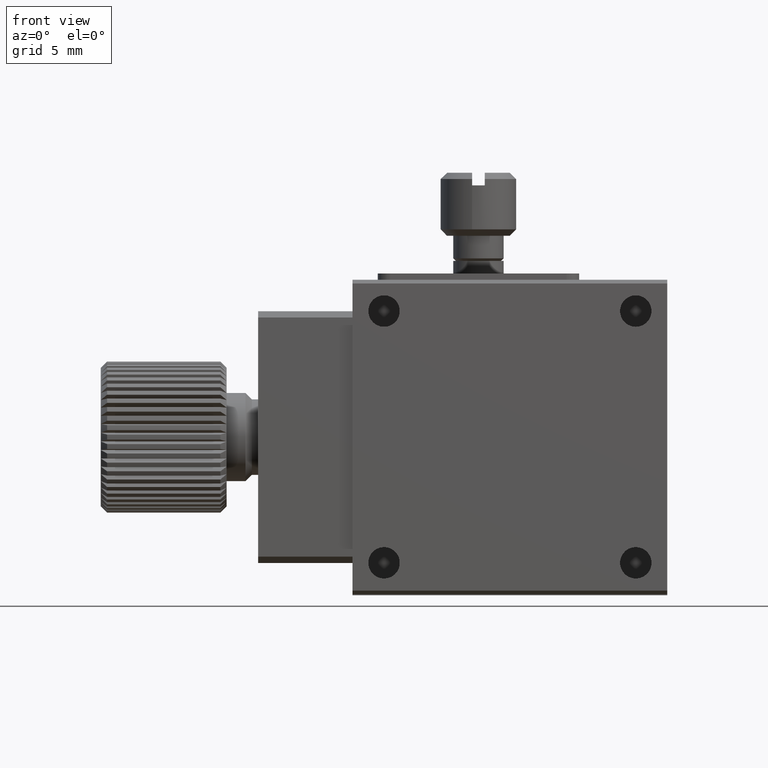
[diagram: clean part render]
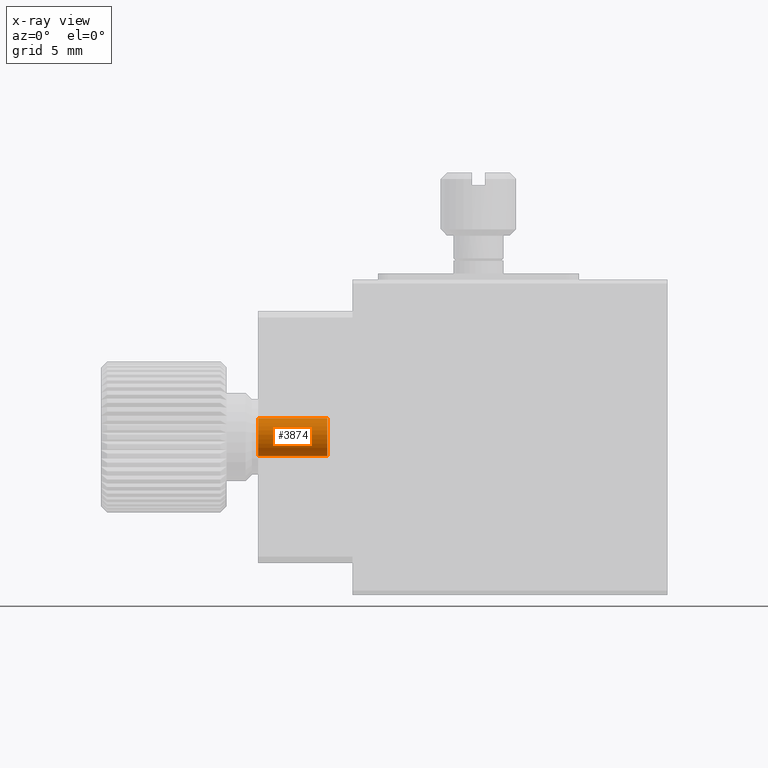
[diagram: x-ray — body ghosted, one internal face saturated and labeled with its STEP entity id]
A machine part, front view, then the same camera in x-ray: the body is ghosted and one INTERNAL B-rep face — a face not visible from any outside direction — is saturated and labeled: STEP entity #3874.
In plain terms, the highlighted cylindrical surface (bore or boss wall) has radius 1.5 mm, axis along (-1, 0, 0).
Its self-contained STEP definition (entity closure, byte-faithful):
#2533 = DIRECTION ( 'NONE',  ( -1.000000000000000000, 0.000000000000000000, 0.000000000000000000 ) ) ;
#2651 = CIRCLE ( 'NONE', #11207, 1.499999999999999556 ) ;
#2669 = VERTEX_POINT ( 'NONE', #6468 ) ;
#2720 = ORIENTED_EDGE ( 'NONE', *, *, #4377, .T. ) ;
#2853 = EDGE_LOOP ( 'NONE', ( #2720 ) ) ;
#3874 = ADVANCED_FACE ( 'NONE', ( #4590, #11943 ), #10069, .T. ) ;
#3888 = AXIS2_PLACEMENT_3D ( 'NONE', #4881, #5693, #6503 ) ;
#4377 = EDGE_CURVE ( 'NONE', #5678, #5678, #8842, .T. ) ;
#4590 = FACE_OUTER_BOUND ( 'NONE', #2853, .T. ) ;
#4881 = CARTESIAN_POINT ( 'NONE',  ( -1.999999999999998224, 7.000000000000000000, -12.50000000000000000 ) ) ;
#5398 = DIRECTION ( 'NONE',  ( 1.000000000000000000, -0.000000000000000000, -0.000000000000000000 ) ) ;
#5678 = VERTEX_POINT ( 'NONE', #11417 ) ;
#5693 = DIRECTION ( 'NONE',  ( -1.000000000000000000, 0.000000000000000000, 0.000000000000000000 ) ) ;
#6031 = EDGE_LOOP ( 'NONE', ( #11249 ) ) ;
#6335 = DIRECTION ( 'NONE',  ( 0.000000000000000000, 0.000000000000000000, 1.000000000000000000 ) ) ;
#6392 = DIRECTION ( 'NONE',  ( 0.000000000000000000, 0.000000000000000000, 1.000000000000000000 ) ) ;
#6460 = CARTESIAN_POINT ( 'NONE',  ( -7.500000000000000000, 7.000000000000000000, -12.50000000000000000 ) ) ;
#6468 = CARTESIAN_POINT ( 'NONE',  ( -7.500000000000000000, 7.000000000000000000, -11.00000000000000178 ) ) ;
#6503 = DIRECTION ( 'NONE',  ( 0.000000000000000000, 0.000000000000000000, 1.000000000000000000 ) ) ;
#8842 = CIRCLE ( 'NONE', #3888, 1.499999999999999556 ) ;
#10069 = CYLINDRICAL_SURFACE ( 'NONE', #12017, 1.499999999999999556 ) ;
#11207 = AXIS2_PLACEMENT_3D ( 'NONE', #6460, #5398, #6392 ) ;
#11249 = ORIENTED_EDGE ( 'NONE', *, *, #11545, .T. ) ;
#11417 = CARTESIAN_POINT ( 'NONE',  ( -1.999999999999998224, 7.000000000000000000, -11.00000000000000178 ) ) ;
#11545 = EDGE_CURVE ( 'NONE', #2669, #2669, #2651, .T. ) ;
#11943 = FACE_OUTER_BOUND ( 'NONE', #6031, .T. ) ;
#12017 = AXIS2_PLACEMENT_3D ( 'NONE', #12185, #2533, #6335 ) ;
#12185 = CARTESIAN_POINT ( 'NONE',  ( -20.00000000000000000, 7.000000000000000000, -12.50000000000000000 ) ) ;